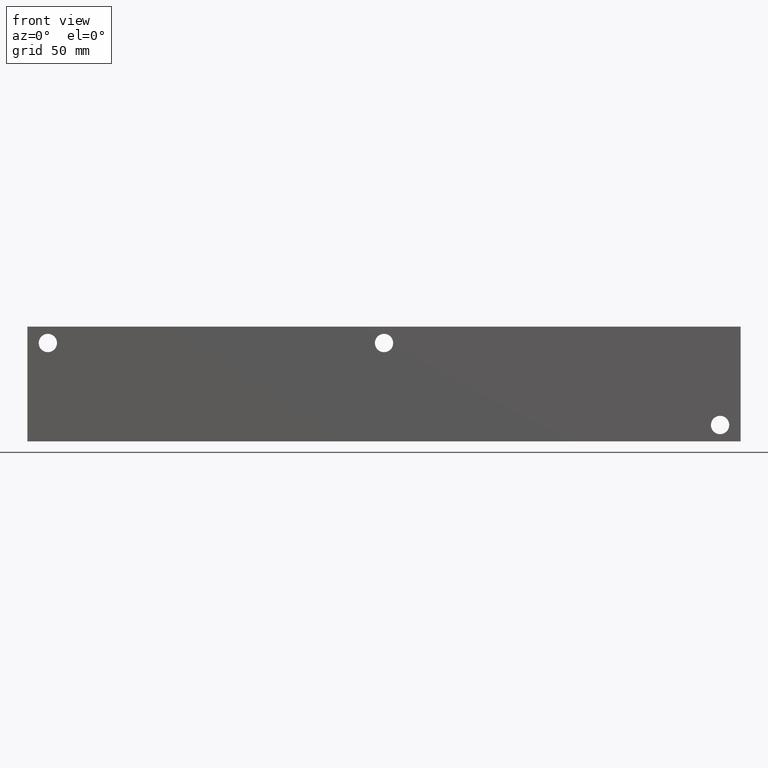
[diagram: clean part render]
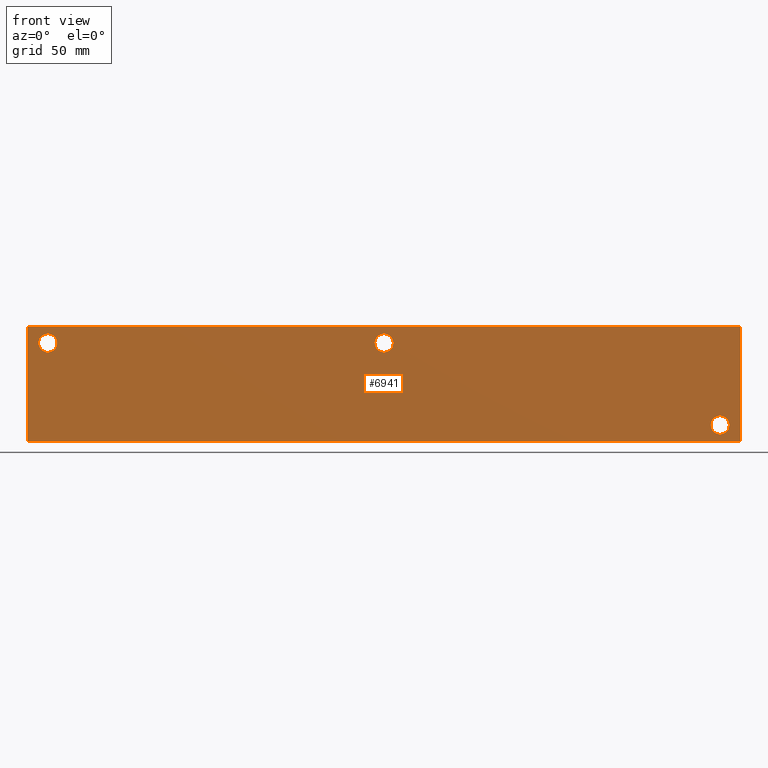
[diagram: same view with one face highlighted and labeled with its STEP entity id]
A machine part, front view. The second image highlights one B-rep face of the part: STEP entity #6941.
In plain terms, the highlighted planar face has unit normal (0, -1, 0).
Its self-contained STEP definition (entity closure, byte-faithful):
#80=CIRCLE('',#7184,3.5687);
#81=CIRCLE('',#7185,3.5687);
#83=CIRCLE('',#7193,3.5687);
#84=CIRCLE('',#7194,3.5687);
#86=CIRCLE('',#7202,3.5687);
#87=CIRCLE('',#7203,3.5687);
#188=FACE_BOUND('',#1169,.T.);
#189=FACE_BOUND('',#1170,.T.);
#190=FACE_BOUND('',#1171,.T.);
#412=PLANE('',#7298);
#764=FACE_OUTER_BOUND('',#1168,.T.);
#1168=EDGE_LOOP('',(#6185,#6186,#6187,#6188));
#1169=EDGE_LOOP('',(#6189,#6190));
#1170=EDGE_LOOP('',(#6191,#6192));
#1171=EDGE_LOOP('',(#6193,#6194));
#1426=LINE('',#10654,#2100);
#1844=LINE('',#11827,#2518);
#1849=LINE('',#11836,#2523);
#1850=LINE('',#11838,#2524);
#2100=VECTOR('',#7682,10.);
#2518=VECTOR('',#8646,10.);
#2523=VECTOR('',#8655,10.);
#2524=VECTOR('',#8658,10.);
#2997=VERTEX_POINT('',#10652);
#2998=VERTEX_POINT('',#10653);
#3281=VERTEX_POINT('',#11606);
#3282=VERTEX_POINT('',#11607);
#3286=VERTEX_POINT('',#11622);
#3287=VERTEX_POINT('',#11623);
#3291=VERTEX_POINT('',#11638);
#3292=VERTEX_POINT('',#11639);
#3352=VERTEX_POINT('',#11825);
#3354=VERTEX_POINT('',#11834);
#3778=EDGE_CURVE('',#2997,#2998,#1426,.T.);
#4193=EDGE_CURVE('',#3281,#3282,#80,.T.);
#4194=EDGE_CURVE('',#3282,#3281,#81,.T.);
#4202=EDGE_CURVE('',#3286,#3287,#83,.T.);
#4203=EDGE_CURVE('',#3287,#3286,#84,.T.);
#4211=EDGE_CURVE('',#3291,#3292,#86,.T.);
#4212=EDGE_CURVE('',#3292,#3291,#87,.T.);
#4298=EDGE_CURVE('',#3352,#2997,#1844,.T.);
#4303=EDGE_CURVE('',#3354,#2998,#1849,.T.);
#4304=EDGE_CURVE('',#3352,#3354,#1850,.T.);
#6185=ORIENTED_EDGE('',*,*,#4304,.T.);
#6186=ORIENTED_EDGE('',*,*,#4303,.T.);
#6187=ORIENTED_EDGE('',*,*,#3778,.F.);
#6188=ORIENTED_EDGE('',*,*,#4298,.F.);
#6189=ORIENTED_EDGE('',*,*,#4193,.T.);
#6190=ORIENTED_EDGE('',*,*,#4194,.T.);
#6191=ORIENTED_EDGE('',*,*,#4202,.T.);
#6192=ORIENTED_EDGE('',*,*,#4203,.T.);
#6193=ORIENTED_EDGE('',*,*,#4211,.T.);
#6194=ORIENTED_EDGE('',*,*,#4212,.T.);
#6941=ADVANCED_FACE('',(#764,#188,#189,#190),#412,.T.);
#7184=AXIS2_PLACEMENT_3D('',#11608,#8385,#8386);
#7185=AXIS2_PLACEMENT_3D('',#11609,#8387,#8388);
#7193=AXIS2_PLACEMENT_3D('',#11624,#8405,#8406);
#7194=AXIS2_PLACEMENT_3D('',#11625,#8407,#8408);
#7202=AXIS2_PLACEMENT_3D('',#11640,#8425,#8426);
#7203=AXIS2_PLACEMENT_3D('',#11641,#8427,#8428);
#7298=AXIS2_PLACEMENT_3D('',#11837,#8656,#8657);
#7682=DIRECTION('',(1.,0.,0.));
#8385=DIRECTION('center_axis',(0.,1.,0.));
#8386=DIRECTION('ref_axis',(1.,0.,0.));
#8387=DIRECTION('center_axis',(0.,1.,0.));
#8388=DIRECTION('ref_axis',(1.,0.,0.));
#8405=DIRECTION('center_axis',(0.,1.,0.));
#8406=DIRECTION('ref_axis',(1.,0.,0.));
#8407=DIRECTION('center_axis',(0.,1.,0.));
#8408=DIRECTION('ref_axis',(1.,0.,0.));
#8425=DIRECTION('center_axis',(0.,1.,0.));
#8426=DIRECTION('ref_axis',(1.,0.,0.));
#8427=DIRECTION('center_axis',(0.,1.,0.));
#8428=DIRECTION('ref_axis',(1.,0.,0.));
#8646=DIRECTION('',(0.,0.,1.));
#8655=DIRECTION('',(0.,0.,1.));
#8656=DIRECTION('center_axis',(0.,-1.,0.));
#8657=DIRECTION('ref_axis',(1.,0.,0.));
#8658=DIRECTION('',(1.,0.,0.));
#10652=CARTESIAN_POINT('',(0.,0.,44.45));
#10653=CARTESIAN_POINT('',(276.225,0.,44.45));
#10654=CARTESIAN_POINT('',(0.,0.,44.45));
#11606=CARTESIAN_POINT('',(141.6939,0.,38.1));
#11607=CARTESIAN_POINT('',(134.5565,0.,38.1));
#11608=CARTESIAN_POINT('Origin',(138.1252,0.,38.1));
#11609=CARTESIAN_POINT('Origin',(138.1252,0.,38.1));
#11622=CARTESIAN_POINT('',(11.4935,0.,38.1));
#11623=CARTESIAN_POINT('',(4.3561,0.,38.1));
#11624=CARTESIAN_POINT('Origin',(7.9248,0.,38.1));
#11625=CARTESIAN_POINT('Origin',(7.9248,0.,38.1));
#11638=CARTESIAN_POINT('',(271.8435,0.,6.35));
#11639=CARTESIAN_POINT('',(264.7061,0.,6.35));
#11640=CARTESIAN_POINT('Origin',(268.2748,0.,6.35));
#11641=CARTESIAN_POINT('Origin',(268.2748,0.,6.35));
#11825=CARTESIAN_POINT('',(0.,0.,0.));
#11827=CARTESIAN_POINT('',(0.,0.,0.));
#11834=CARTESIAN_POINT('',(276.225,0.,0.));
#11836=CARTESIAN_POINT('',(276.225,0.,0.));
#11837=CARTESIAN_POINT('Origin',(0.,0.,0.));
#11838=CARTESIAN_POINT('',(0.,0.,0.));